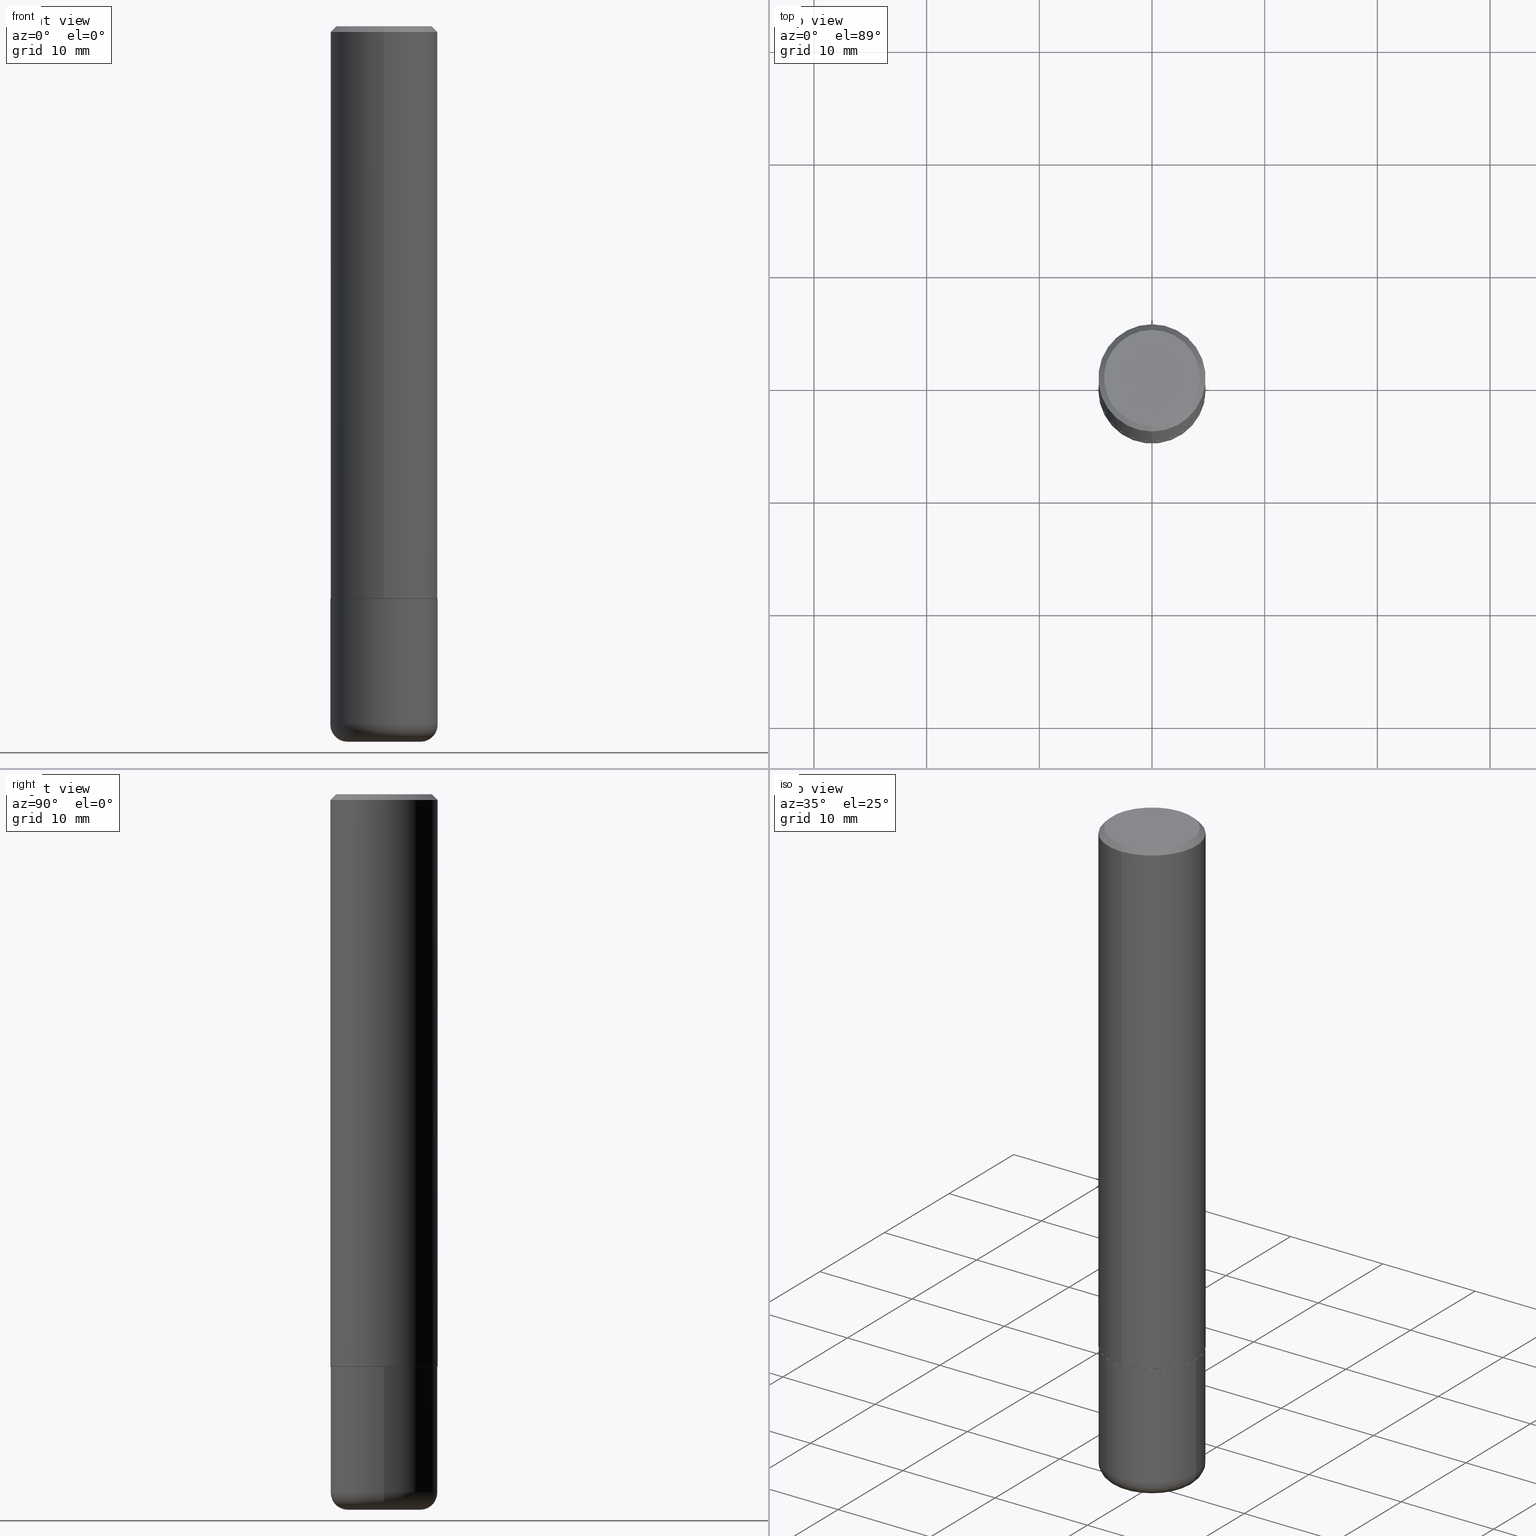
[diagram: canonical four-view strip — front | top / right | iso, engineering-drawing reading convention]
A machine part, canonical four-view strip (front | top / right | iso — engineering-drawing reading convention). The complete STEP part file that produces these views, byte-faithful:
ISO-10303-21;
HEADER;
FILE_DESCRIPTION (( 'STEP AP203' ),
    '1' );
FILE_NAME ('38816.STEP',
    '2024-03-03T14:34:50',
    ( '' ),
    ( '' ),
    'SwSTEP 2.0',
    'SolidWorks 2023',
    '' );
FILE_SCHEMA (( 'CONFIG_CONTROL_DESIGN' ));
ENDSEC;

DATA;
#1 = APPROVAL_ROLE ( '' ) ;
#2 = VECTOR ( 'NONE', #366, 39.37007874015748143 ) ;
#3 = AXIS2_PLACEMENT_3D ( 'NONE', #206, #41, #105 ) ;
#4 = APPROVAL_DATE_TIME ( #291, #32 ) ;
#5 = CC_DESIGN_PERSON_AND_ORGANIZATION_ASSIGNMENT ( #171, #294, ( #394 ) ) ;
#6 = DIRECTION ( 'NONE',  ( -6.982962677686265922E-15, -1.000000000000000000, 2.929595703661408850E-15 ) ) ;
#7 = DIRECTION ( 'NONE',  ( 1.000000000000000000, -6.982962677686265922E-15, 4.876176775795935793E-29 ) ) ;
#8 = CLOSED_SHELL ( 'NONE', ( #16, #347, #227, #93, #230, #221 ) ) ;
#9 = CONICAL_SURFACE ( 'NONE', #30, 0.1875000000000000555, 0.7853981633974473908 ) ;
#10 = DIRECTION ( 'NONE',  ( -2.445162114595160575E-29, 3.491920538655792507E-15, 1.000000000000000000 ) ) ;
#11 = CARTESIAN_POINT ( 'NONE',  ( -5.236590585173793708E-46, 7.478341868521650963E-32, 2.141612841912039052E-17 ) ) ;
#12 = DIRECTION ( 'NONE',  ( 4.937700262164543309E-15, 0.7071067811865444641, -0.7071067811865506814 ) ) ;
#13 = CARTESIAN_POINT ( 'NONE',  ( 4.890324229190321710E-29, -6.983841077311585015E-15, -2.000000000000000000 ) ) ;
#14 = DIRECTION ( 'NONE',  ( -6.982962677686265922E-15, -1.000000000000000000, 2.929595703661408850E-15 ) ) ;
#15 = EDGE_LOOP ( 'NONE', ( #392, #201, #258, #405 ) ) ;
#16 = ADVANCED_FACE ( 'NONE', ( #332 ), #182, .T. ) ;
#17 = CARTESIAN_POINT ( 'NONE',  ( 0.000000000000000000, 0.000000000000000000, 0.000000000000000000 ) ) ;
#18 = ORIENTED_EDGE ( 'NONE', *, *, #240, .F. ) ;
#19 = PERSON_AND_ORGANIZATION ( #416, #156 ) ;
#20 = CARTESIAN_POINT ( 'NONE',  ( 6.113672015462842613E-29, -8.728703347107866520E-15, -2.500000000000000444 ) ) ;
#21 = DIRECTION ( 'NONE',  ( -6.982962677686265922E-15, -1.000000000000000000, 2.929595703661408850E-15 ) ) ;
#22 = AXIS2_PLACEMENT_3D ( 'NONE', #82, #53, #341 ) ;
#23 = CARTESIAN_POINT ( 'NONE',  ( 1.169646248512449595E-15, 0.1675000000000000100, -5.741886260152851058E-16 ) ) ;
#24 = PRODUCT ( '38816', '38816', '', ( #322 ) ) ;
#25 = EDGE_LOOP ( 'NONE', ( #288, #251, #209, #407 ) ) ;
#26 = CARTESIAN_POINT ( 'NONE',  ( 4.890324229190331589E-31, -6.983841077311600052E-17, -0.02000000000000004205 ) ) ;
#27 = MANIFOLD_SOLID_BREP ( 'Body-Move/Copy2[1]', #8 ) ;
#28 = DIRECTION ( 'NONE',  ( -2.445468806185136597E-29, 3.491481338843145583E-15, 1.000000000000000000 ) ) ;
#29 = FACE_OUTER_BOUND ( 'NONE', #133, .T. ) ;
#30 = AXIS2_PLACEMENT_3D ( 'NONE', #26, #91, #340 ) ;
#31 = CARTESIAN_POINT ( 'NONE',  ( 1.332267629550213684E-15, 0.1874999999999933109, -1.999000000000000554 ) ) ;
#32 = APPROVAL ( #203, 'UNSPECIFIED' ) ;
#33 = MANIFOLD_SOLID_BREP ( 'Body-Move/Copy2[2]', #336 ) ;
#34 = ORIENTED_EDGE ( 'NONE', *, *, #159, .F. ) ;
#35 = AXIS2_PLACEMENT_3D ( 'NONE', #254, #409, #124 ) ;
#36 = EDGE_CURVE ( 'NONE', #412, #45, #138, .T. ) ;
#37 = EDGE_LOOP ( 'NONE', ( #34, #395 ) ) ;
#38 = ADVANCED_BREP_SHAPE_REPRESENTATION ( '38816', ( #27, #33, #139 ), #92 ) ;
#39 = ORIENTED_EDGE ( 'NONE', *, *, #146, .T. ) ;
#40 = APPROVAL_PERSON_ORGANIZATION ( #100, #262, #1 ) ;
#41 = DIRECTION ( 'NONE',  ( -2.445162114595160575E-29, 3.491920538655792507E-15, 1.000000000000000000 ) ) ;
#42 = CARTESIAN_POINT ( 'NONE',  ( 4.890324229190321149E-29, -6.983841077311584226E-15, -1.999999999999999778 ) ) ;
#43 = CARTESIAN_POINT ( 'NONE',  ( 1.309305502066175797E-15, 0.1874999999999999722, -0.02000000000000069431 ) ) ;
#44 = FACE_OUTER_BOUND ( 'NONE', #66, .T. ) ;
#45 = VERTEX_POINT ( 'NONE', #76 ) ;
#46 = ADVANCED_FACE ( 'NONE', ( #238 ), #272, .T. ) ;
#47 = CIRCLE ( 'NONE', #35, 0.1875000000000000555 ) ;
#48 = DIRECTION ( 'NONE',  ( -2.445162114595160575E-29, 3.491920538655792507E-15, 1.000000000000000000 ) ) ;
#49 = CARTESIAN_POINT ( 'NONE',  ( 1.239475875289312696E-15, 0.1675000000000000100, -5.634805618057250307E-16 ) ) ;
#50 = SECURITY_CLASSIFICATION_LEVEL ( 'unclassified' ) ;
#51 = DIRECTION ( 'NONE',  ( -2.445468806185136877E-29, 3.491481338843145188E-15, 1.000000000000000000 ) ) ;
#52 = DIRECTION ( 'NONE',  ( -2.445162114595160575E-29, 3.491920538655792507E-15, 1.000000000000000000 ) ) ;
#53 = DIRECTION ( 'NONE',  ( -2.445468806185136597E-29, 3.491481338843145583E-15, 1.000000000000000000 ) ) ;
#54 = EDGE_CURVE ( 'NONE', #318, #125, #317, .T. ) ;
#55 = EDGE_LOOP ( 'NONE', ( #80, #110, #311, #248 ) ) ;
#56 = VECTOR ( 'NONE', #413, 39.37007874015748143 ) ;
#57 = CARTESIAN_POINT ( 'NONE',  ( 5.966943887091733341E-29, -8.519214466777275048E-15, -2.440000000000000391 ) ) ;
#58 = CARTESIAN_POINT ( 'NONE',  ( 0.000000000000000000, 0.000000000000000000, 0.000000000000000000 ) ) ;
#59 = ORIENTED_EDGE ( 'NONE', *, *, #181, .F. ) ;
#60 = CC_DESIGN_PERSON_AND_ORGANIZATION_ASSIGNMENT ( #183, #250, ( #102 ) ) ;
#61 = TOROIDAL_SURFACE ( 'NONE', #22, 0.1275000000000000022, 0.06000000000000024758 ) ;
#62 = CALENDAR_DATE ( 2024, 3, 3 ) ;
#63 = ORIENTED_EDGE ( 'NONE', *, *, #309, .F. ) ;
#64 = ORIENTED_EDGE ( 'NONE', *, *, #361, .T. ) ;
#65 = CONICAL_SURFACE ( 'NONE', #299, 0.1864999999999999714, 0.7853981633977044075 ) ;
#66 = EDGE_LOOP ( 'NONE', ( #202, #64 ) ) ;
#67 = AXIS2_PLACEMENT_3D ( 'NONE', #119, #376, #349 ) ;
#68 = LOCAL_TIME ( 9, 34, 50.00000000000000000, #196 ) ;
#69 = CARTESIAN_POINT ( 'NONE',  ( 0.000000000000000000, 0.000000000000000000, 0.000000000000000000 ) ) ;
#70 = PRODUCT_RELATED_PRODUCT_CATEGORY ( 'detail', '', ( #24 ) ) ;
#71 = AXIS2_PLACEMENT_3D ( 'NONE', #360, #325, #87 ) ;
#72 = VERTEX_POINT ( 'NONE', #242 ) ;
#73 = EDGE_CURVE ( 'NONE', #348, #45, #264, .T. ) ;
#74 = DIRECTION ( 'NONE',  ( -2.445162114595160575E-29, 3.491920538655792507E-15, 1.000000000000000000 ) ) ;
#75 = ORIENTED_EDGE ( 'NONE', *, *, #249, .F. ) ;
#76 = CARTESIAN_POINT ( 'NONE',  ( 1.309305502066175797E-15, 0.1874999999999999722, -0.02000000000000069431 ) ) ;
#77 = AXIS2_PLACEMENT_3D ( 'NONE', #17, #302, #88 ) ;
#78 = CC_DESIGN_APPROVAL ( #32, ( #394 ) ) ;
#79 = FACE_OUTER_BOUND ( 'NONE', #315, .T. ) ;
#80 = ORIENTED_EDGE ( 'NONE', *, *, #198, .F. ) ;
#81 = DIRECTION ( 'NONE',  ( -2.445468806185136597E-29, 3.491481338843145583E-15, 1.000000000000000000 ) ) ;
#82 = CARTESIAN_POINT ( 'NONE',  ( 5.966943887091733341E-29, -8.519214466777275048E-15, -2.440000000000000391 ) ) ;
#83 = APPROVAL_DATE_TIME ( #368, #262 ) ;
#84 = CC_DESIGN_PERSON_AND_ORGANIZATION_ASSIGNMENT ( #137, #259, ( #24 ) ) ;
#85 = VERTEX_POINT ( 'NONE', #141 ) ;
#86 = CARTESIAN_POINT ( 'NONE',  ( 4.890324229190331589E-31, -6.983841077311600052E-17, -0.02000000000000004205 ) ) ;
#87 = DIRECTION ( 'NONE',  ( 1.000000000000000000, -6.982962677686266711E-15, 0.000000000000000000 ) ) ;
#88 = DIRECTION ( 'NONE',  ( 1.000000000000000000, -6.982962677686265922E-15, 4.876176775795935793E-29 ) ) ;
#89 = VERTEX_POINT ( 'NONE', #226 ) ;
#90 = DIRECTION ( 'NONE',  ( 1.000000000000000000, -6.982962677686267499E-15, 0.000000000000000000 ) ) ;
#91 = DIRECTION ( 'NONE',  ( 2.445162114595160575E-29, -3.491920538655792507E-15, -1.000000000000000000 ) ) ;
#92 =( GEOMETRIC_REPRESENTATION_CONTEXT ( 3 ) GLOBAL_UNCERTAINTY_ASSIGNED_CONTEXT ( ( #134 ) ) GLOBAL_UNIT_ASSIGNED_CONTEXT ( ( #320, #415, #166 ) ) REPRESENTATION_CONTEXT ( 'NONE', 'WORKASPACE' ) );
#93 = ADVANCED_FACE ( 'NONE', ( #164 ), #204, .T. ) ;
#94 = DIRECTION ( 'NONE',  ( 1.000000000000000000, -6.982962677686260400E-15, 0.000000000000000000 ) ) ;
#95 = ORIENTED_EDGE ( 'NONE', *, *, #54, .F. ) ;
#96 = AXIS2_PLACEMENT_3D ( 'NONE', #57, #371, #193 ) ;
#97 = LOCAL_TIME ( 9, 34, 50.00000000000000000, #108 ) ;
#98 = ORIENTED_EDGE ( 'NONE', *, *, #126, .F. ) ;
#99 = DATE_AND_TIME ( #388, #402 ) ;
#100 = PERSON_AND_ORGANIZATION ( #416, #156 ) ;
#101 = CIRCLE ( 'NONE', #268, 0.1875000000000002776 ) ;
#102 = SECURITY_CLASSIFICATION ( '', '', #50 ) ;
#103 = VERTEX_POINT ( 'NONE', #233 ) ;
#104 = EDGE_CURVE ( 'NONE', #411, #412, #101, .T. ) ;
#105 = DIRECTION ( 'NONE',  ( -6.982962677686265922E-15, -1.000000000000000000, 3.483106191921934371E-15 ) ) ;
#106 = CONICAL_SURFACE ( 'NONE', #278, 0.1864999999999999714, 0.7853981633977044075 ) ;
#107 = FACE_OUTER_BOUND ( 'NONE', #130, .T. ) ;
#108 = COORDINATED_UNIVERSAL_TIME_OFFSET ( 5, 0, .BEHIND. ) ;
#109 = DIRECTION ( 'NONE',  ( -2.445468806185136597E-29, 3.491481338843145583E-15, 1.000000000000000000 ) ) ;
#110 = ORIENTED_EDGE ( 'NONE', *, *, #384, .T. ) ;
#111 = AXIS2_PLACEMENT_3D ( 'NONE', #194, #28, #157 ) ;
#112 = APPROVAL_DATE_TIME ( #297, #293 ) ;
#113 = DIRECTION ( 'NONE',  ( -2.445162114595160575E-29, 3.491920538655792507E-15, 1.000000000000000000 ) ) ;
#114 = ORIENTED_EDGE ( 'NONE', *, *, #104, .F. ) ;
#115 = ORIENTED_EDGE ( 'NONE', *, *, #225, .T. ) ;
#116 = DIRECTION ( 'NONE',  ( 5.024295867789349022E-15, 0.7071067811867310926, 0.7071067811863640529 ) ) ;
#117 = DIRECTION ( 'NONE',  ( -2.445162114595160575E-29, 3.491920538655792507E-15, 1.000000000000000000 ) ) ;
#118 = CARTESIAN_POINT ( 'NONE',  ( 0.1875000000000000555, -1.309305502066175205E-15, 9.142831454617382414E-30 ) ) ;
#119 = CARTESIAN_POINT ( 'NONE',  ( -1.367266251544870937E-29, -1.944183273402655128E-14, -2.500000000000000000 ) ) ;
#120 = AXIS2_PLACEMENT_3D ( 'NONE', #367, #263, #328 ) ;
#121 = LINE ( 'NONE', #188, #127 ) ;
#122 = TOROIDAL_SURFACE ( 'NONE', #96, 0.1275000000000000022, 0.06000000000000024758 ) ;
#123 = ADVANCED_FACE ( 'NONE', ( #335 ), #65, .T. ) ;
#124 = DIRECTION ( 'NONE',  ( 1.000000000000000000, -6.982962677686260400E-15, 0.000000000000000000 ) ) ;
#125 = VERTEX_POINT ( 'NONE', #140 ) ;
#126 = EDGE_CURVE ( 'NONE', #412, #411, #147, .T. ) ;
#127 = VECTOR ( 'NONE', #51, 39.37007874015748143 ) ;
#128 = EDGE_LOOP ( 'NONE', ( #387, #277, #145, #363 ) ) ;
#129 = DIRECTION ( 'NONE',  ( 1.000000000000000000, 0.000000000000000000, 0.000000000000000000 ) ) ;
#130 = EDGE_LOOP ( 'NONE', ( #310, #385 ) ) ;
#131 = ORIENTED_EDGE ( 'NONE', *, *, #190, .T. ) ;
#132 = COORDINATED_UNIVERSAL_TIME_OFFSET ( 5, 0, .BEHIND. ) ;
#133 = EDGE_LOOP ( 'NONE', ( #59, #252, #131, #178 ) ) ;
#134 = UNCERTAINTY_MEASURE_WITH_UNIT (LENGTH_MEASURE( 1.000000000000000082E-05 ), #320, 'distance_accuracy_value', 'NONE');
#135 = CC_DESIGN_PERSON_AND_ORGANIZATION_ASSIGNMENT ( #339, #236, ( #222 ) ) ;
#136 = CIRCLE ( 'NONE', #235, 0.06000000000000024758 ) ;
#137 = PERSON_AND_ORGANIZATION ( #416, #156 ) ;
#138 = LINE ( 'NONE', #401, #2 ) ;
#139 = AXIS2_PLACEMENT_3D ( 'NONE', #69, #289, #129 ) ;
#140 = CARTESIAN_POINT ( 'NONE',  ( 0.1875000000000000278, -8.292268179752466962E-15, -2.000000000000000000 ) ) ;
#141 = CARTESIAN_POINT ( 'NONE',  ( -0.1275000000000000022, -7.504854098120412392E-15, -2.500000000000000444 ) ) ;
#142 = PERSON_AND_ORGANIZATION ( #416, #156 ) ;
#143 = SHAPE_DEFINITION_REPRESENTATION ( #255, #38 ) ;
#144 = DESIGN_CONTEXT ( 'detailed design', #212, 'design' ) ;
#145 = ORIENTED_EDGE ( 'NONE', *, *, #240, .T. ) ;
#146 = EDGE_CURVE ( 'NONE', #333, #103, #358, .T. ) ;
#147 = CIRCLE ( 'NONE', #120, 0.1875000000000002776 ) ;
#148 = AXIS2_PLACEMENT_3D ( 'NONE', #42, #174, #418 ) ;
#149 = PLANE ( 'NONE',  #346 ) ;
#150 = AXIS2_PLACEMENT_3D ( 'NONE', #282, #306, #180 ) ;
#151 = APPROVAL_ROLE ( '' ) ;
#152 = FACE_OUTER_BOUND ( 'NONE', #37, .T. ) ;
#153 = APPROVAL_PERSON_ORGANIZATION ( #19, #293, #151 ) ;
#154 = ORIENTED_EDGE ( 'NONE', *, *, #167, .T. ) ;
#155 = LINE ( 'NONE', #271, #305 ) ;
#156 = ORGANIZATION ( 'UNSPECIFIED', 'UNSPECIFIED', '' ) ;
#157 = DIRECTION ( 'NONE',  ( 1.000000000000000000, -6.982962677686267499E-15, 0.000000000000000000 ) ) ;
#158 = LOCAL_TIME ( 9, 34, 50.00000000000000000, #323 ) ;
#159 = EDGE_CURVE ( 'NONE', #403, #85, #329, .T. ) ;
#160 = LENGTH_MEASURE_WITH_UNIT ( LENGTH_MEASURE( 0.02539999999999999897 ), #223 );
#161 = ORIENTED_EDGE ( 'NONE', *, *, #36, .T. ) ;
#162 = AXIS2_PLACEMENT_3D ( 'NONE', #217, #342, #369 ) ;
#163 = EDGE_LOOP ( 'NONE', ( #351, #290, #362, #98 ) ) ;
#164 = FACE_OUTER_BOUND ( 'NONE', #55, .T. ) ;
#165 = ORIENTED_EDGE ( 'NONE', *, *, #104, .T. ) ;
#166 =( NAMED_UNIT ( * ) SI_UNIT ( $, .STERADIAN. ) SOLID_ANGLE_UNIT ( ) );
#167 = EDGE_CURVE ( 'NONE', #103, #412, #283, .T. ) ;
#168 = APPLICATION_PROTOCOL_DEFINITION ( 'international standard', 'config_control_design', 1994, #212 ) ;
#169 = AXIS2_PLACEMENT_3D ( 'NONE', #370, #81, #374 ) ;
#170 = DIRECTION ( 'NONE',  ( -2.445468806185136877E-29, 3.491481338843145188E-15, 1.000000000000000000 ) ) ;
#171 = PERSON_AND_ORGANIZATION ( #416, #156 ) ;
#172 = CARTESIAN_POINT ( 'NONE',  ( 4.890324229190321149E-29, -6.983841077311584226E-15, -1.999999999999999778 ) ) ;
#173 = ORIENTED_EDGE ( 'NONE', *, *, #296, .F. ) ;
#174 = DIRECTION ( 'NONE',  ( -2.445162114595160575E-29, 3.491920538655792507E-15, 1.000000000000000000 ) ) ;
#175 = DIRECTION ( 'NONE',  ( -2.445162114595160575E-29, 3.491920538655792507E-15, 1.000000000000000000 ) ) ;
#176 = CARTESIAN_POINT ( 'NONE',  ( -1.217738394604446837E-15, -0.1675000000000000100, 6.063128186439657255E-16 ) ) ;
#177 = DIRECTION ( 'NONE',  ( -6.982962677686265922E-15, -1.000000000000000000, 3.491920538655792507E-15 ) ) ;
#178 = ORIENTED_EDGE ( 'NONE', *, *, #384, .F. ) ;
#179 = AXIS2_PLACEMENT_3D ( 'NONE', #307, #410, #94 ) ;
#180 = DIRECTION ( 'NONE',  ( 6.982962677686265922E-15, 1.000000000000000000, -3.483106191921934371E-15 ) ) ;
#181 = EDGE_CURVE ( 'NONE', #85, #89, #408, .T. ) ;
#182 = CYLINDRICAL_SURFACE ( 'NONE', #77, 0.1875000000000000555 ) ;
#183 = PERSON_AND_ORGANIZATION ( #416, #156 ) ;
#184 = FACE_OUTER_BOUND ( 'NONE', #25, .T. ) ;
#185 = PLANE ( 'NONE',  #292 ) ;
#186 = AXIS2_PLACEMENT_3D ( 'NONE', #20, #109, #90 ) ;
#187 = DIRECTION ( 'NONE',  ( 2.438088387897960049E-29, -3.491481338843145188E-15, -1.000000000000000000 ) ) ;
#188 = CARTESIAN_POINT ( 'NONE',  ( -0.1875000000000000555, 1.332267629550188243E-15, -9.223003294227950793E-30 ) ) ;
#189 = DIRECTION ( 'NONE',  ( -6.982962677686265922E-15, -1.000000000000000000, 3.491920538655792902E-15 ) ) ;
#190 = EDGE_CURVE ( 'NONE', #403, #318, #136, .T. ) ;
#191 = CARTESIAN_POINT ( 'NONE',  ( 4.890937612370273194E-29, -6.982962677686291165E-15, -2.000000000000000000 ) ) ;
#192 = CARTESIAN_POINT ( 'NONE',  ( 1.325162202192635552E-15, 0.1864999999999929770, -2.000000000000000444 ) ) ;
#193 = DIRECTION ( 'NONE',  ( 1.000000000000000000, -6.982962677686263555E-15, 4.883557194083111780E-29 ) ) ;
#194 = CARTESIAN_POINT ( 'NONE',  ( 6.113672015462842613E-29, -8.728703347107866520E-15, -2.500000000000000444 ) ) ;
#195 = CIRCLE ( 'NONE', #71, 0.1875000000000000278 ) ;
#196 = COORDINATED_UNIVERSAL_TIME_OFFSET ( 5, 0, .BEHIND. ) ;
#197 = CYLINDRICAL_SURFACE ( 'NONE', #287, 0.1875000000000001943 ) ;
#198 = EDGE_CURVE ( 'NONE', #89, #381, #121, .T. ) ;
#199 = DIRECTION ( 'NONE',  ( -2.445162114595160294E-29, 3.491920538655792902E-15, 1.000000000000000000 ) ) ;
#200 = ADVANCED_FACE ( 'NONE', ( #184 ), #9, .T. ) ;
#201 = ORIENTED_EDGE ( 'NONE', *, *, #181, .T. ) ;
#202 = ORIENTED_EDGE ( 'NONE', *, *, #354, .T. ) ;
#203 = APPROVAL_STATUS ( 'not_yet_approved' ) ;
#204 = CYLINDRICAL_SURFACE ( 'NONE', #396, 0.1875000000000000555 ) ;
#205 = ADVANCED_FACE ( 'NONE', ( #303 ), #106, .T. ) ;
#206 = CARTESIAN_POINT ( 'NONE',  ( 4.890324229190331589E-31, -6.983841077311600052E-17, -0.02000000000000004205 ) ) ;
#207 = AXIS2_PLACEMENT_3D ( 'NONE', #11, #218, #189 ) ;
#208 = DIRECTION ( 'NONE',  ( -6.982962677686265922E-15, -1.000000000000000000, 3.491920538655792902E-15 ) ) ;
#209 = ORIENTED_EDGE ( 'NONE', *, *, #73, .T. ) ;
#210 = CIRCLE ( 'NONE', #169, 0.1875000000000000278 ) ;
#211 = EDGE_CURVE ( 'NONE', #333, #411, #155, .T. ) ;
#212 = APPLICATION_CONTEXT ( 'configuration controlled 3d designs of mechanical parts and assemblies' ) ;
#213 = DIMENSIONAL_EXPONENTS ( 1.000000000000000000, 0.000000000000000000, 0.000000000000000000, 0.000000000000000000, 0.000000000000000000, 0.000000000000000000, 0.000000000000000000 ) ;
#214 = DIRECTION ( 'NONE',  ( -6.982962677686266711E-15, -1.000000000000000000, 3.491481338843145583E-15 ) ) ;
#215 = ADVANCED_FACE ( 'NONE', ( #79 ), #300, .T. ) ;
#216 = CIRCLE ( 'NONE', #148, 0.1864999999999999714 ) ;
#217 = CARTESIAN_POINT ( 'NONE',  ( -0.1275000000000000022, -7.613272478683147690E-15, -2.440000000000000391 ) ) ;
#218 = DIRECTION ( 'NONE',  ( -2.445162114595160575E-29, 3.491920538655792507E-15, 1.000000000000000000 ) ) ;
#219 = CALENDAR_DATE ( 2024, 3, 3 ) ;
#220 = CARTESIAN_POINT ( 'NONE',  ( 0.1275000000000000022, -9.619031088512866473E-15, -2.500000000000000444 ) ) ;
#221 = ADVANCED_FACE ( 'NONE', ( #152 ), #280, .T. ) ;
#222 = PRODUCT_DEFINITION_FORMATION_WITH_SPECIFIED_SOURCE ( 'ANY', '', #24, .NOT_KNOWN. ) ;
#223 =( LENGTH_UNIT ( ) NAMED_UNIT ( * ) SI_UNIT ( $, .METRE. ) );
#224 = ORIENTED_EDGE ( 'NONE', *, *, #146, .F. ) ;
#225 = EDGE_CURVE ( 'NONE', #356, #72, #357, .T. ) ;
#226 = CARTESIAN_POINT ( 'NONE',  ( -0.1875000000000001388, -7.186946837227087200E-15, -2.440000000000000391 ) ) ;
#227 = ADVANCED_FACE ( 'NONE', ( #107 ), #308, .F. ) ;
#228 = COORDINATED_UNIVERSAL_TIME_OFFSET ( 5, 0, .BEHIND. ) ;
#229 = CIRCLE ( 'NONE', #372, 0.1875000000000000555 ) ;
#230 = ADVANCED_FACE ( 'NONE', ( #29 ), #122, .T. ) ;
#231 = APPROVAL_ROLE ( '' ) ;
#232 = DIRECTION ( 'NONE',  ( -2.445162114595160014E-29, 3.491920538655792902E-15, 1.000000000000000000 ) ) ;
#233 = CARTESIAN_POINT ( 'NONE',  ( 1.328714915871436845E-15, 0.1864999999999929770, -2.000000000000000444 ) ) ;
#234 = CARTESIAN_POINT ( 'NONE',  ( 0.1875000000000001388, -9.828519968843450056E-15, -2.440000000000000391 ) ) ;
#235 = AXIS2_PLACEMENT_3D ( 'NONE', #241, #214, #379 ) ;
#236 = PERSON_AND_ORGANIZATION_ROLE ( 'creator' ) ;
#237 = ADVANCED_FACE ( 'NONE', ( #404 ), #197, .T. ) ;
#238 = FACE_OUTER_BOUND ( 'NONE', #128, .T. ) ;
#239 = CC_DESIGN_SECURITY_CLASSIFICATION ( #102, ( #222 ) ) ;
#240 = EDGE_CURVE ( 'NONE', #411, #72, #380, .T. ) ;
#241 = CARTESIAN_POINT ( 'NONE',  ( 0.1275000000000000022, -9.409542208182273423E-15, -2.440000000000000391 ) ) ;
#242 = CARTESIAN_POINT ( 'NONE',  ( -1.286343374582161774E-15, -0.1875000000000001110, -0.01999999999999938979 ) ) ;
#243 = DIRECTION ( 'NONE',  ( -6.982962677686265922E-15, -1.000000000000000000, 3.491920538655792507E-15 ) ) ;
#244 = AXIS2_PLACEMENT_3D ( 'NONE', #330, #74, #177 ) ;
#245 = CARTESIAN_POINT ( 'NONE',  ( 4.890324229190321149E-29, -6.983841077311584226E-15, -1.999999999999999778 ) ) ;
#246 = DIRECTION ( 'NONE',  ( -6.982962677686265922E-15, -1.000000000000000000, 3.483106191921934371E-15 ) ) ;
#247 = CARTESIAN_POINT ( 'NONE',  ( -0.1875000000000000278, -6.418820942681594864E-15, -2.000000000000000000 ) ) ;
#248 = ORIENTED_EDGE ( 'NONE', *, *, #324, .F. ) ;
#249 = EDGE_CURVE ( 'NONE', #125, #381, #210, .T. ) ;
#250 = PERSON_AND_ORGANIZATION_ROLE ( 'classification_officer' ) ;
#251 = ORIENTED_EDGE ( 'NONE', *, *, #354, .F. ) ;
#252 = ORIENTED_EDGE ( 'NONE', *, *, #391, .T. ) ;
#253 = VECTOR ( 'NONE', #199, 39.37007874015748143 ) ;
#254 = CARTESIAN_POINT ( 'NONE',  ( 5.966943887091733341E-29, -8.519214466777275048E-15, -2.440000000000000391 ) ) ;
#255 = PRODUCT_DEFINITION_SHAPE ( 'NONE', 'NONE',  #394 ) ;
#256 = CARTESIAN_POINT ( 'NONE',  ( -1.309305502066176192E-15, -0.1875000000000001943, 6.547351009979617607E-16 ) ) ;
#257 = APPLICATION_PROTOCOL_DEFINITION ( 'international standard', 'config_control_design', 1994, #383 ) ;
#258 = ORIENTED_EDGE ( 'NONE', *, *, #400, .F. ) ;
#259 = PERSON_AND_ORGANIZATION_ROLE ( 'design_owner' ) ;
#260 = CARTESIAN_POINT ( 'NONE',  ( 0.000000000000000000, 0.000000000000000000, 0.000000000000000000 ) ) ;
#261 = LOCAL_TIME ( 9, 34, 50.00000000000000000, #132 ) ;
#262 = APPROVAL ( #359, 'UNSPECIFIED' ) ;
#263 = DIRECTION ( 'NONE',  ( -2.445162114595160575E-29, 3.491920538655792507E-15, 1.000000000000000000 ) ) ;
#264 = LINE ( 'NONE', #43, #345 ) ;
#265 = DIRECTION ( 'NONE',  ( -6.982962677686265922E-15, -1.000000000000000000, 3.491920538655792902E-15 ) ) ;
#266 = DATE_AND_TIME ( #219, #68 ) ;
#267 = EDGE_CURVE ( 'NONE', #45, #72, #229, .T. ) ;
#268 = AXIS2_PLACEMENT_3D ( 'NONE', #270, #175, #365 ) ;
#269 = CIRCLE ( 'NONE', #207, 0.1675000000000000100 ) ;
#270 = CARTESIAN_POINT ( 'NONE',  ( 4.887879067075725967E-29, -6.980349156772927879E-15, -1.998999999999999888 ) ) ;
#271 = CARTESIAN_POINT ( 'NONE',  ( -1.302322539388439493E-15, -0.1865000000000069658, -1.999999999999999112 ) ) ;
#272 = CYLINDRICAL_SURFACE ( 'NONE', #244, 0.1875000000000001943 ) ;
#273 = PERSON_AND_ORGANIZATION_ROLE ( 'design_supplier' ) ;
#274 = DIRECTION ( 'NONE',  ( -2.445162114595160575E-29, 3.491920538655792507E-15, 1.000000000000000000 ) ) ;
#275 = ORIENTED_EDGE ( 'NONE', *, *, #211, .F. ) ;
#276 = VECTOR ( 'NONE', #170, 39.37007874015748143 ) ;
#277 = ORIENTED_EDGE ( 'NONE', *, *, #126, .T. ) ;
#278 = AXIS2_PLACEMENT_3D ( 'NONE', #245, #48, #21 ) ;
#279 = CC_DESIGN_DATE_AND_TIME_ASSIGNMENT ( #99, #390, ( #394 ) ) ;
#280 = PLANE ( 'NONE',  #67 ) ;
#281 = CARTESIAN_POINT ( 'NONE',  ( -5.236590585173793708E-46, 7.478341868521650963E-32, 2.141612841912039052E-17 ) ) ;
#282 = CARTESIAN_POINT ( 'NONE',  ( 4.890324229190331589E-31, -6.983841077311600052E-17, -0.02000000000000004205 ) ) ;
#283 = LINE ( 'NONE', #192, #319 ) ;
#284 = ADVANCED_FACE ( 'NONE', ( #313 ), #149, .F. ) ;
#285 = ORIENTED_EDGE ( 'NONE', *, *, #400, .T. ) ;
#286 = CARTESIAN_POINT ( 'NONE',  ( -1.286343374582161774E-15, -0.1875000000000001110, -0.01999999999999938979 ) ) ;
#287 = AXIS2_PLACEMENT_3D ( 'NONE', #58, #113, #243 ) ;
#288 = ORIENTED_EDGE ( 'NONE', *, *, #225, .F. ) ;
#289 = DIRECTION ( 'NONE',  ( 0.000000000000000000, 0.000000000000000000, 1.000000000000000000 ) ) ;
#290 = ORIENTED_EDGE ( 'NONE', *, *, #296, .T. ) ;
#291 = DATE_AND_TIME ( #389, #261 ) ;
#292 = AXIS2_PLACEMENT_3D ( 'NONE', #23, #337, #304 ) ;
#293 = APPROVAL ( #295, 'UNSPECIFIED' ) ;
#294 = PERSON_AND_ORGANIZATION_ROLE ( 'creator' ) ;
#295 = APPROVAL_STATUS ( 'not_yet_approved' ) ;
#296 = EDGE_CURVE ( 'NONE', #103, #333, #216, .T. ) ;
#297 = DATE_AND_TIME ( #301, #97 ) ;
#298 = CARTESIAN_POINT ( 'NONE',  ( 4.890324229190321149E-29, -6.983841077311584226E-15, -1.999999999999999778 ) ) ;
#299 = AXIS2_PLACEMENT_3D ( 'NONE', #298, #10, #6 ) ;
#300 = CONICAL_SURFACE ( 'NONE', #150, 0.1875000000000000555, 0.7853981633974473908 ) ;
#301 = CALENDAR_DATE ( 2024, 3, 3 ) ;
#302 = DIRECTION ( 'NONE',  ( -2.445468806185136597E-29, 3.491481338843145583E-15, 1.000000000000000000 ) ) ;
#303 = FACE_OUTER_BOUND ( 'NONE', #344, .T. ) ;
#304 = DIRECTION ( 'NONE',  ( 6.982962677686265922E-15, 1.000000000000000000, -3.491920538655792902E-15 ) ) ;
#305 = VECTOR ( 'NONE', #399, 39.37007874015748143 ) ;
#306 = DIRECTION ( 'NONE',  ( 2.445162114595160575E-29, -3.491920538655792507E-15, -1.000000000000000000 ) ) ;
#307 = CARTESIAN_POINT ( 'NONE',  ( 5.966943887091733341E-29, -8.519214466777275048E-15, -2.440000000000000391 ) ) ;
#308 = PLANE ( 'NONE',  #326 ) ;
#309 = EDGE_CURVE ( 'NONE', #72, #45, #364, .T. ) ;
#310 = ORIENTED_EDGE ( 'NONE', *, *, #249, .T. ) ;
#311 = ORIENTED_EDGE ( 'NONE', *, *, #54, .T. ) ;
#312 = AXIS2_PLACEMENT_3D ( 'NONE', #281, #117, #208 ) ;
#313 = FACE_OUTER_BOUND ( 'NONE', #382, .T. ) ;
#314 = DIRECTION ( 'NONE',  ( -1.000000000000000000, 6.982962677686265922E-15, -4.876176775795935793E-29 ) ) ;
#315 = EDGE_LOOP ( 'NONE', ( #321, #115, #355, #417 ) ) ;
#316 = ORIENTED_EDGE ( 'NONE', *, *, #198, .T. ) ;
#317 = LINE ( 'NONE', #118, #276 ) ;
#318 = VERTEX_POINT ( 'NONE', #234 ) ;
#319 = VECTOR ( 'NONE', #116, 39.37007874015748143 ) ;
#320 =( CONVERSION_BASED_UNIT ( 'INCH', #160 ) LENGTH_UNIT ( ) NAMED_UNIT ( #213 ) );
#321 = ORIENTED_EDGE ( 'NONE', *, *, #361, .F. ) ;
#322 = MECHANICAL_CONTEXT ( 'NONE', #383, 'mechanical' ) ;
#323 = COORDINATED_UNIVERSAL_TIME_OFFSET ( 5, 0, .BEHIND. ) ;
#324 = EDGE_CURVE ( 'NONE', #381, #125, #195, .T. ) ;
#325 = DIRECTION ( 'NONE',  ( -2.445468806185136597E-29, 3.491481338843145583E-15, 1.000000000000000000 ) ) ;
#326 = AXIS2_PLACEMENT_3D ( 'NONE', #191, #187, #314 ) ;
#327 = PERSON_AND_ORGANIZATION ( #416, #156 ) ;
#328 = DIRECTION ( 'NONE',  ( -6.982962677686266711E-15, -1.000000000000000000, 2.913971193241876428E-15 ) ) ;
#329 = CIRCLE ( 'NONE', #186, 0.1275000000000000022 ) ;
#330 = CARTESIAN_POINT ( 'NONE',  ( 0.000000000000000000, 0.000000000000000000, 0.000000000000000000 ) ) ;
#331 = CARTESIAN_POINT ( 'NONE',  ( -1.302322539388439493E-15, -0.1865000000000069658, -1.999999999999999112 ) ) ;
#332 = FACE_OUTER_BOUND ( 'NONE', #377, .T. ) ;
#333 = VERTEX_POINT ( 'NONE', #331 ) ;
#334 = DATE_TIME_ROLE ( 'classification_date' ) ;
#335 = FACE_OUTER_BOUND ( 'NONE', #163, .T. ) ;
#336 = CLOSED_SHELL ( 'NONE', ( #205, #237, #215, #200, #46, #123, #284, #350 ) ) ;
#337 = DIRECTION ( 'NONE',  ( 2.445162114595160014E-29, -3.491920538655792902E-15, -1.000000000000000000 ) ) ;
#338 = EDGE_LOOP ( 'NONE', ( #165, #161, #63, #18 ) ) ;
#339 = PERSON_AND_ORGANIZATION ( #416, #156 ) ;
#340 = DIRECTION ( 'NONE',  ( 6.982962677686265922E-15, 1.000000000000000000, -3.483106191921934371E-15 ) ) ;
#341 = DIRECTION ( 'NONE',  ( 1.000000000000000000, -6.982962677686263555E-15, 4.883557194083111780E-29 ) ) ;
#342 = DIRECTION ( 'NONE',  ( 7.105427357601001859E-15, 1.000000000000000000, -3.491481338843145583E-15 ) ) ;
#343 = CC_DESIGN_PERSON_AND_ORGANIZATION_ASSIGNMENT ( #142, #273, ( #222 ) ) ;
#344 = EDGE_LOOP ( 'NONE', ( #39, #154, #114, #275 ) ) ;
#345 = VECTOR ( 'NONE', #12, 39.37007874015748143 ) ;
#346 = AXIS2_PLACEMENT_3D ( 'NONE', #13, #232, #265 ) ;
#347 = ADVANCED_FACE ( 'NONE', ( #375 ), #61, .T. ) ;
#348 = VERTEX_POINT ( 'NONE', #49 ) ;
#349 = DIRECTION ( 'NONE',  ( -1.000000000000000000, 6.982962677686265922E-15, -4.876176775795935793E-29 ) ) ;
#350 = ADVANCED_FACE ( 'NONE', ( #44 ), #185, .F. ) ;
#351 = ORIENTED_EDGE ( 'NONE', *, *, #167, .F. ) ;
#352 = CARTESIAN_POINT ( 'NONE',  ( -1.309305502066128268E-15, -0.1875000000000072442, -1.998999999999999444 ) ) ;
#353 = CC_DESIGN_APPROVAL ( #262, ( #222 ) ) ;
#354 = EDGE_CURVE ( 'NONE', #348, #356, #386, .T. ) ;
#355 = ORIENTED_EDGE ( 'NONE', *, *, #309, .T. ) ;
#356 = VERTEX_POINT ( 'NONE', #176 ) ;
#357 = LINE ( 'NONE', #286, #56 ) ;
#358 = CIRCLE ( 'NONE', #406, 0.1864999999999999714 ) ;
#359 = APPROVAL_STATUS ( 'not_yet_approved' ) ;
#360 = CARTESIAN_POINT ( 'NONE',  ( 4.890937612370273194E-29, -6.982962677686291165E-15, -2.000000000000000000 ) ) ;
#361 = EDGE_CURVE ( 'NONE', #356, #348, #269, .T. ) ;
#362 = ORIENTED_EDGE ( 'NONE', *, *, #211, .T. ) ;
#363 = ORIENTED_EDGE ( 'NONE', *, *, #267, .F. ) ;
#364 = CIRCLE ( 'NONE', #3, 0.1875000000000000555 ) ;
#365 = DIRECTION ( 'NONE',  ( -6.982962677686266711E-15, -1.000000000000000000, 2.913971193241876428E-15 ) ) ;
#366 = DIRECTION ( 'NONE',  ( -2.445162114595160294E-29, 3.491920538655792902E-15, 1.000000000000000000 ) ) ;
#367 = CARTESIAN_POINT ( 'NONE',  ( 4.887879067075725967E-29, -6.980349156772927879E-15, -1.998999999999999888 ) ) ;
#368 = DATE_AND_TIME ( #62, #158 ) ;
#369 = DIRECTION ( 'NONE',  ( -1.000000000000000000, 7.105427357600993970E-15, 0.000000000000000000 ) ) ;
#370 = CARTESIAN_POINT ( 'NONE',  ( 4.890937612370273194E-29, -6.982962677686291165E-15, -2.000000000000000000 ) ) ;
#371 = DIRECTION ( 'NONE',  ( -2.445468806185136597E-29, 3.491481338843145583E-15, 1.000000000000000000 ) ) ;
#372 = AXIS2_PLACEMENT_3D ( 'NONE', #86, #52, #246 ) ;
#373 = CC_DESIGN_DATE_AND_TIME_ASSIGNMENT ( #266, #334, ( #102 ) ) ;
#374 = DIRECTION ( 'NONE',  ( 1.000000000000000000, -6.982962677686266711E-15, 0.000000000000000000 ) ) ;
#375 = FACE_OUTER_BOUND ( 'NONE', #15, .T. ) ;
#376 = DIRECTION ( 'NONE',  ( 2.438088387897960049E-29, -3.491481338843145188E-15, -1.000000000000000000 ) ) ;
#377 = EDGE_LOOP ( 'NONE', ( #285, #316, #75, #95 ) ) ;
#378 = CIRCLE ( 'NONE', #111, 0.1275000000000000022 ) ;
#379 = DIRECTION ( 'NONE',  ( 1.000000000000000000, -6.982962677686271444E-15, 0.000000000000000000 ) ) ;
#380 = LINE ( 'NONE', #256, #253 ) ;
#381 = VERTEX_POINT ( 'NONE', #247 ) ;
#382 = EDGE_LOOP ( 'NONE', ( #224, #173 ) ) ;
#383 = APPLICATION_CONTEXT ( 'configuration controlled 3d designs of mechanical parts and assemblies' ) ;
#384 = EDGE_CURVE ( 'NONE', #89, #318, #414, .T. ) ;
#385 = ORIENTED_EDGE ( 'NONE', *, *, #324, .T. ) ;
#386 = CIRCLE ( 'NONE', #312, 0.1675000000000000100 ) ;
#387 = ORIENTED_EDGE ( 'NONE', *, *, #36, .F. ) ;
#388 = CALENDAR_DATE ( 2024, 3, 3 ) ;
#389 = CALENDAR_DATE ( 2024, 3, 3 ) ;
#390 = DATE_TIME_ROLE ( 'creation_date' ) ;
#391 = EDGE_CURVE ( 'NONE', #85, #403, #378, .T. ) ;
#392 = ORIENTED_EDGE ( 'NONE', *, *, #159, .T. ) ;
#393 = APPROVAL_PERSON_ORGANIZATION ( #327, #32, #231 ) ;
#394 = PRODUCT_DEFINITION ( 'UNKNOWN', '', #222, #144 ) ;
#395 = ORIENTED_EDGE ( 'NONE', *, *, #391, .F. ) ;
#396 = AXIS2_PLACEMENT_3D ( 'NONE', #260, #398, #7 ) ;
#397 = CC_DESIGN_APPROVAL ( #293, ( #102 ) ) ;
#398 = DIRECTION ( 'NONE',  ( -2.445468806185136597E-29, 3.491481338843145583E-15, 1.000000000000000000 ) ) ;
#399 = DIRECTION ( 'NONE',  ( -4.937700262165812586E-15, -0.7071067811867262076, 0.7071067811863689379 ) ) ;
#400 = EDGE_CURVE ( 'NONE', #318, #89, #47, .T. ) ;
#401 = CARTESIAN_POINT ( 'NONE',  ( 1.332267629550188835E-15, 0.1875000000000001943, -6.547351009979617607E-16 ) ) ;
#402 = LOCAL_TIME ( 9, 34, 50.00000000000000000, #228 ) ;
#403 = VERTEX_POINT ( 'NONE', #220 ) ;
#404 = FACE_OUTER_BOUND ( 'NONE', #338, .T. ) ;
#405 = ORIENTED_EDGE ( 'NONE', *, *, #190, .F. ) ;
#406 = AXIS2_PLACEMENT_3D ( 'NONE', #172, #274, #14 ) ;
#407 = ORIENTED_EDGE ( 'NONE', *, *, #267, .T. ) ;
#408 = CIRCLE ( 'NONE', #162, 0.06000000000000024758 ) ;
#409 = DIRECTION ( 'NONE',  ( -2.445468806185136597E-29, 3.491481338843145583E-15, 1.000000000000000000 ) ) ;
#410 = DIRECTION ( 'NONE',  ( -2.445468806185136597E-29, 3.491481338843145583E-15, 1.000000000000000000 ) ) ;
#411 = VERTEX_POINT ( 'NONE', #352 ) ;
#412 = VERTEX_POINT ( 'NONE', #31 ) ;
#413 = DIRECTION ( 'NONE',  ( -4.851104656540959542E-15, -0.7071067811865493491, -0.7071067811865457964 ) ) ;
#414 = CIRCLE ( 'NONE', #179, 0.1875000000000000555 ) ;
#415 =( NAMED_UNIT ( * ) PLANE_ANGLE_UNIT ( ) SI_UNIT ( $, .RADIAN. ) );
#416 = PERSON ( 'UNSPECIFIED', 'UNSPECIFIED', 'UNSPECIFIED', ('UNSPECIFIED'), ('UNSPECIFIED'), ('UNSPECIFIED') ) ;
#417 = ORIENTED_EDGE ( 'NONE', *, *, #73, .F. ) ;
#418 = DIRECTION ( 'NONE',  ( -6.982962677686265922E-15, -1.000000000000000000, 2.929595703661408850E-15 ) ) ;
ENDSEC;
END-ISO-10303-21;
